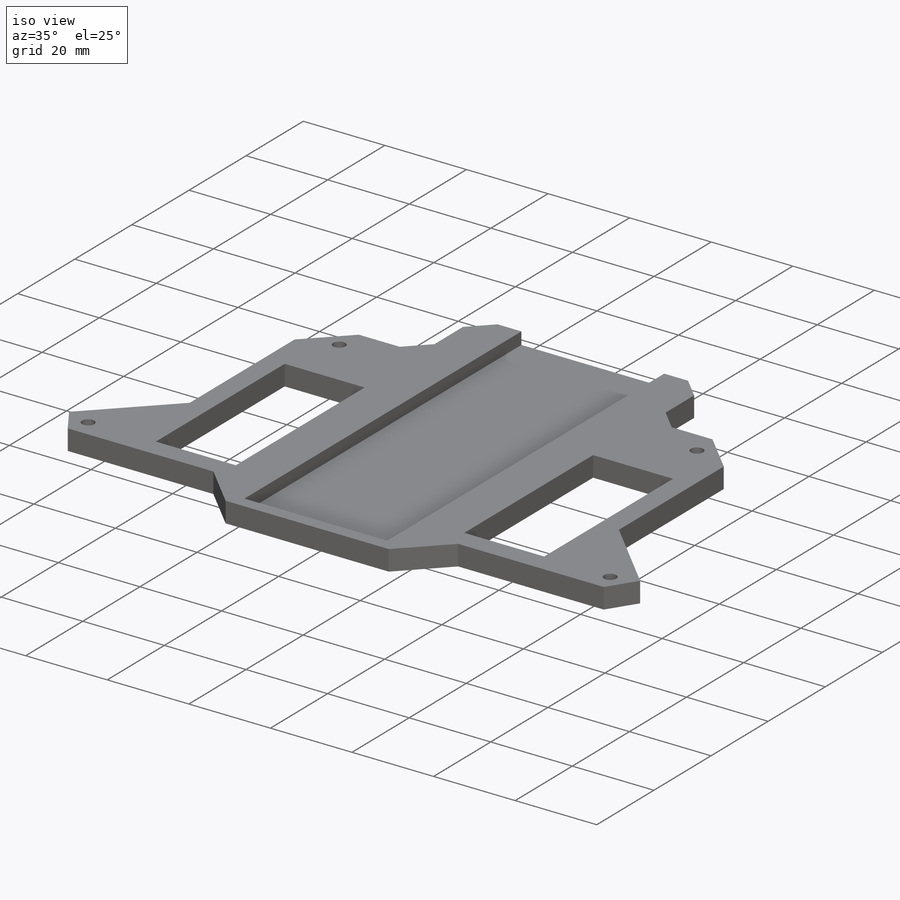
[diagram: iso view]
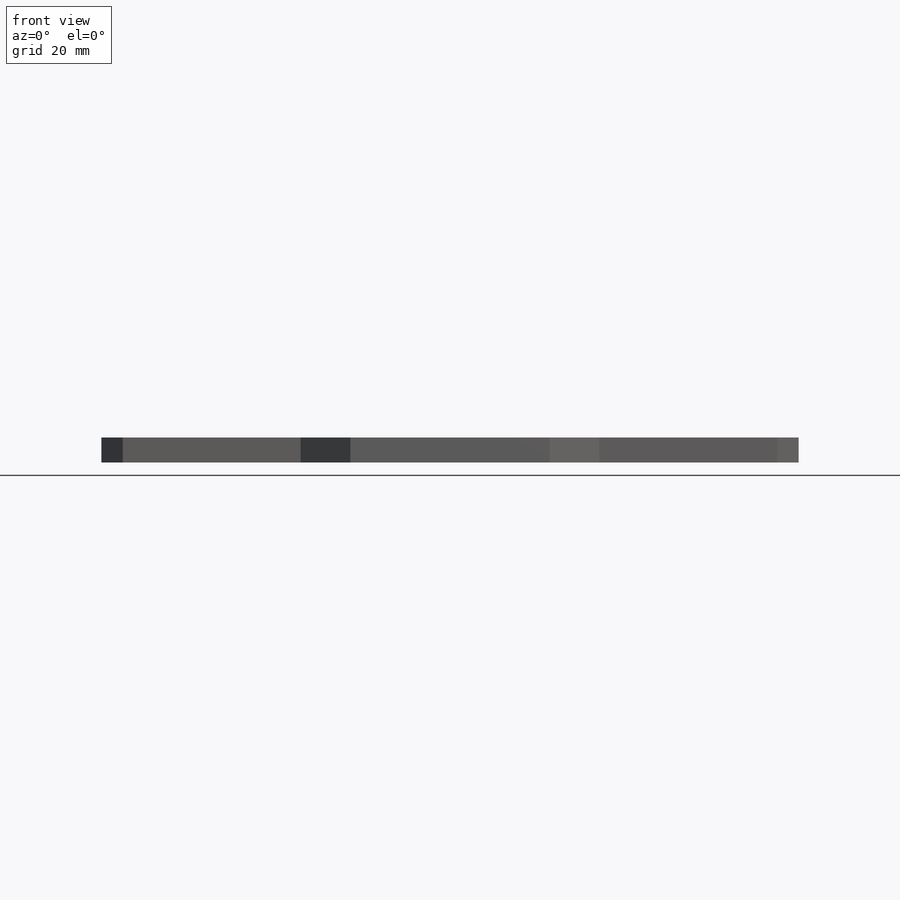
[diagram: front view]
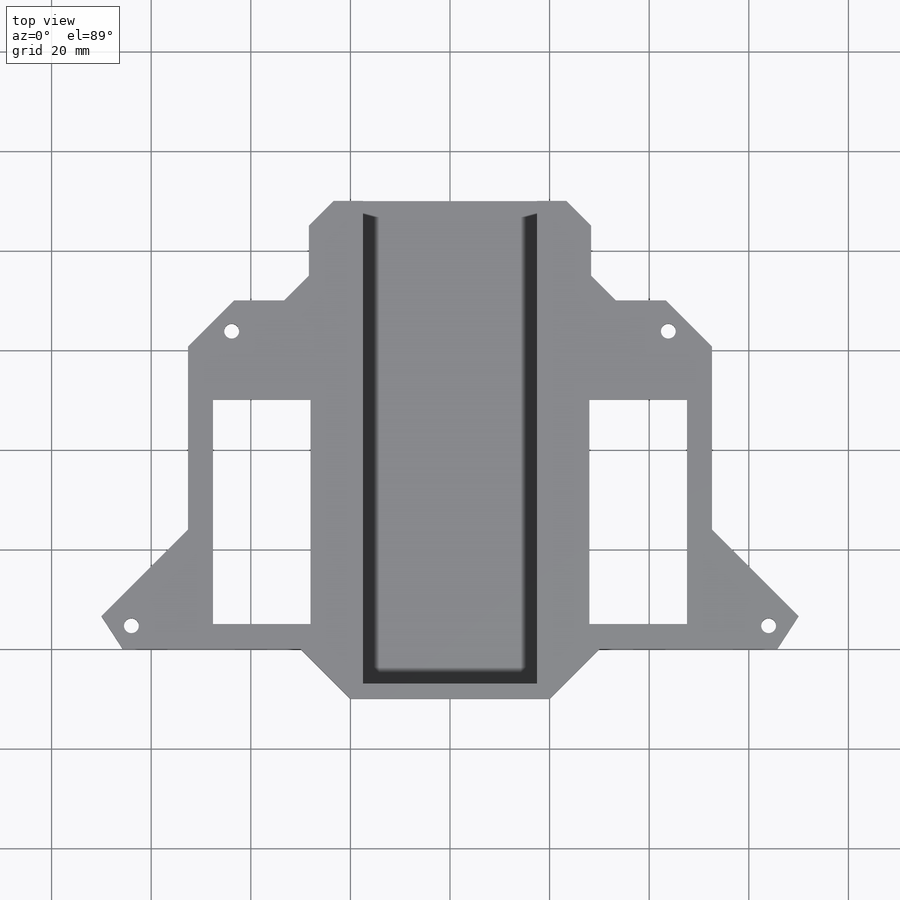
[diagram: top view]
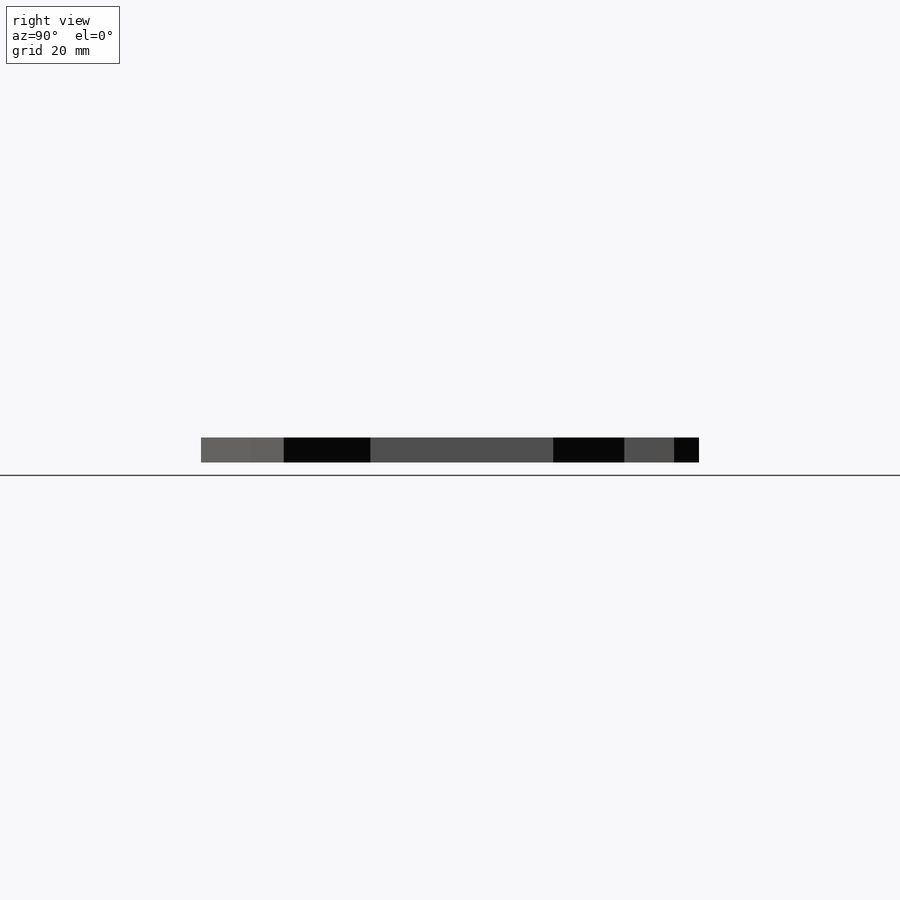
[diagram: right view]
SOLIDWORKS PART (.sldprt)
format: sldprt  version: not decoded by parser v0  size: 266,752 bytes
history: native  units: mm
features: sketch x3, cut_extrude x2, material x1, extrude x1, mirror x1 (+11 scaffold rows collapsed)
feature tree (19):
  scaffold x11  (default folders/planes/origin — collapsed)
  material  "Material <not specified>"
  sketch  "Sketch1"  dims[c1.D1=85.0mm c1.D7=3.0mm c1.D17=170.0mm c1.D2=8.0mm c1.D3=~18.903072mm c2.D3=45.0deg c2.D4=~29.593338mm c3.D4=31.0deg c3.D5=24.0mm c3.D6=24.0mm c3.D8=6.0mm c3.D9=22.0mm c3.D3=4.0mm c4.D4=4.0mm c4.D10=22.0mm c4.D11=6.0mm c4.D12=4.0mm c4.D13=4.0mm c4.D14=~56.370009mm c5.D14=45.0deg c5.D15=~48.552556mm c6.D15=33.0deg c6.D16=66.0mm c6.D2=4.0mm c6.D3=4.0mm c6.D4=60.0mm c6.D5=30.0mm c6.D6=70.0mm c6.D8=62.0mm c6.D11=19.6mm c6.D12=45.1mm c6.D13=30.0mm c7.D16=15.0mm c7.D18=17.5mm c7.D4=25.0mm c8.D18=80.0mm c8.D19=20.0mm c8.D6=70.0mm c8.D13=28.0mm c8.D2=22.0mm c8.D4=20.0mm c9.D18=4.0mm c9.D19=70.0mm]
  extrude  "Boss-Extrude1"  Depth=5mm
  sketch  "Sketch3"  dims[c1.D1=20.0mm c1.D2=10.0mm c1.D3=~16.536201mm c2.D3=45.0deg c2.D4=~26.019182mm c3.D4=45.0deg c3.D5=5.0mm c3.D6=20.0mm c3.D7=5.0mm c3.D8=5.0mm c3.D9=5.0mm]
  cut_extrude  "Cut-Extrude2"  [1 undecoded]
  mirror  "Mirror1"
  sketch  "Sketch2"  dims[D1=3.0mm D2=35.0mm D3=17.5mm]
  cut_extrude  "Cut-Extrude1"  Depth=3mm
decode coverage: 5 of 7 modeling features carry decoded parameters
note: ~ marks probable driven/reference dimensions
note: 1 parameter value undecoded
note: suppression state not decoded; provenance and decode notes live in map.json
